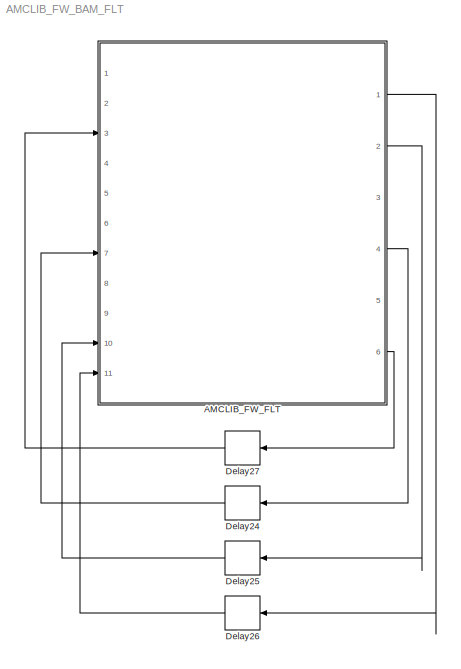
MODEL AMCLIB_FW_BAM_FLT
KIND model
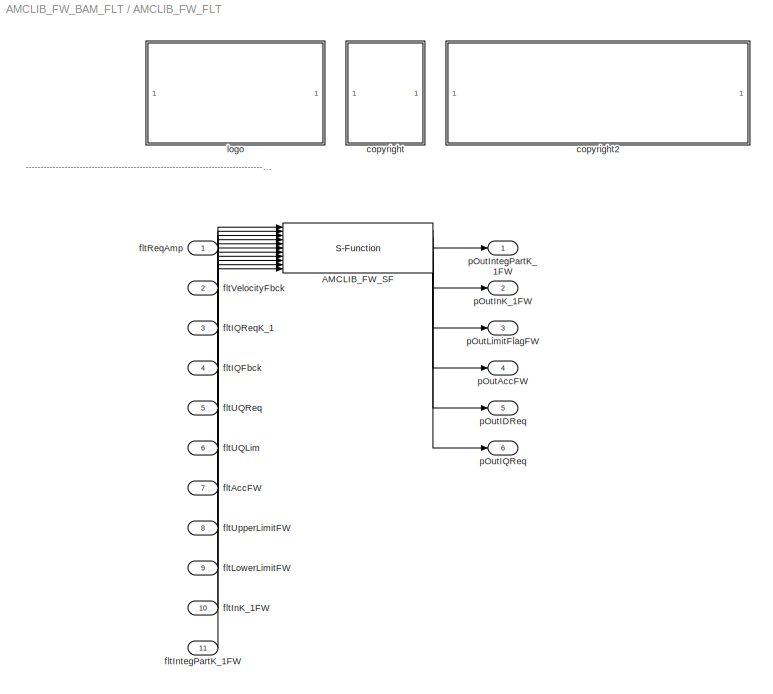
BLOCK [SubSystem] AMCLIB_FW_FLT
  Ports = [11, 6]
  RequestExecContextInheritance = off
  SID = 1
BLOCK [S-Function] AMCLIB_FW_FLT/AMCLIB_FW_SF
  EnableBusSupport = off
  FunctionName = AMCLIB_FW_SF_FLT
  Parameters = fltLambdaFW,fltPropGainFW,fltIntegGainFW,fltUmaxDivImax
  Ports = [11, 6]
  SID = 4
BLOCK [SubSystem] AMCLIB_FW_FLT/<copyright redacted>
  Ports = []
  RequestExecContextInheritance = off
  SID = 26
BLOCK [SubSystem] AMCLIB_FW_FLT/copyright2
  Ports = []
  RequestExecContextInheritance = off
  SID = 29
BLOCK [Inport] AMCLIB_FW_FLT/fltAccFW
  IconDisplay = Port number
  Port = 7
  SID = 11
BLOCK [Inport] AMCLIB_FW_FLT/fltIQFbck
  IconDisplay = Port number
  Port = 4
  SID = 8
BLOCK [Inport] AMCLIB_FW_FLT/fltIQReqK_1
  IconDisplay = Port number
  Port = 3
  SID = 7
BLOCK [Inport] AMCLIB_FW_FLT/fltInK_1FW
  IconDisplay = Port number
  Port = 10
  SID = 14
BLOCK [Inport] AMCLIB_FW_FLT/fltIntegPartK_1FW
  IconDisplay = Port number
  Port = 11
  SID = 15
BLOCK [Inport] AMCLIB_FW_FLT/fltLowerLimitFW
  IconDisplay = Port number
  Port = 9
  SID = 13
BLOCK [Inport] AMCLIB_FW_FLT/fltReqAmp
  IconDisplay = Port number
  SID = 5
BLOCK [Inport] AMCLIB_FW_FLT/fltUQLim
  IconDisplay = Port number
  Port = 6
  SID = 10
BLOCK [Inport] AMCLIB_FW_FLT/fltUQReq
  IconDisplay = Port number
  Port = 5
  SID = 9
BLOCK [Inport] AMCLIB_FW_FLT/fltUpperLimitFW
  IconDisplay = Port number
  Port = 8
  SID = 12
BLOCK [Inport] AMCLIB_FW_FLT/fltVelocityFbck
  IconDisplay = Port number
  Port = 2
  SID = 6
BLOCK [SubSystem] AMCLIB_FW_FLT/logo
  Ports = []
  RequestExecContextInheritance = off
  SID = 22
BLOCK [Outport] AMCLIB_FW_FLT/pOutAccFW
  IconDisplay = Port number
  Port = 4
  SID = 19
BLOCK [Outport] AMCLIB_FW_FLT/pOutIDReq
  IconDisplay = Port number
  Port = 5
  SID = 20
BLOCK [Outport] AMCLIB_FW_FLT/pOutIQReq
  IconDisplay = Port number
  Port = 6
  SID = 21
BLOCK [Outport] AMCLIB_FW_FLT/pOutInK_1FW
  IconDisplay = Port number
  Port = 2
  SID = 17
BLOCK [Outport] AMCLIB_FW_FLT/pOutIntegPartK_1FW
  IconDisplay = Port number
  SID = 16
BLOCK [Outport] AMCLIB_FW_FLT/pOutLimitFlagFW
  IconDisplay = Port number
  Port = 3
  SID = 18
BLOCK [Delay] Delay24
  DelayLength = 1
  InitialCondition = 0
  InputPortMap = u0
  Ports = [1, 1]
  SID = 32
BLOCK [Delay] Delay25
  DelayLength = 1
  InitialCondition = 0
  InputPortMap = u0
  Ports = [1, 1]
  SID = 33
BLOCK [Delay] Delay26
  DelayLength = 1
  InitialCondition = 0
  InputPortMap = u0
  Ports = [1, 1]
  SID = 34
BLOCK [Delay] Delay27
  DelayLength = 1
  InitialCondition = 0
  InputPortMap = u0
  Ports = [1, 1]
  SID = 35
ANNOTATION AMCLIB_FW_FLT: ---------------------------------------------------------------------------------------------------------------------------------------------------------------------------------------------------
LINE AMCLIB_FW_FLT/AMCLIB_FW_SF:1 -> AMCLIB_FW_FLT/pOutIntegPartK_1FW:1
LINE AMCLIB_FW_FLT/AMCLIB_FW_SF:2 -> AMCLIB_FW_FLT/pOutInK_1FW:1
LINE AMCLIB_FW_FLT/AMCLIB_FW_SF:3 -> AMCLIB_FW_FLT/pOutLimitFlagFW:1
LINE AMCLIB_FW_FLT/AMCLIB_FW_SF:4 -> AMCLIB_FW_FLT/pOutAccFW:1
LINE AMCLIB_FW_FLT/AMCLIB_FW_SF:5 -> AMCLIB_FW_FLT/pOutIDReq:1
LINE AMCLIB_FW_FLT/AMCLIB_FW_SF:6 -> AMCLIB_FW_FLT/pOutIQReq:1
LINE AMCLIB_FW_FLT/fltAccFW:1 -> AMCLIB_FW_FLT/AMCLIB_FW_SF:7
LINE AMCLIB_FW_FLT/fltIQFbck:1 -> AMCLIB_FW_FLT/AMCLIB_FW_SF:4
LINE AMCLIB_FW_FLT/fltIQReqK_1:1 -> AMCLIB_FW_FLT/AMCLIB_FW_SF:3
LINE AMCLIB_FW_FLT/fltInK_1FW:1 -> AMCLIB_FW_FLT/AMCLIB_FW_SF:10
LINE AMCLIB_FW_FLT/fltIntegPartK_1FW:1 -> AMCLIB_FW_FLT/AMCLIB_FW_SF:11
LINE AMCLIB_FW_FLT/fltLowerLimitFW:1 -> AMCLIB_FW_FLT/AMCLIB_FW_SF:9
LINE AMCLIB_FW_FLT/fltReqAmp:1 -> AMCLIB_FW_FLT/AMCLIB_FW_SF:1
LINE AMCLIB_FW_FLT/fltUQLim:1 -> AMCLIB_FW_FLT/AMCLIB_FW_SF:6
LINE AMCLIB_FW_FLT/fltUQReq:1 -> AMCLIB_FW_FLT/AMCLIB_FW_SF:5
LINE AMCLIB_FW_FLT/fltUpperLimitFW:1 -> AMCLIB_FW_FLT/AMCLIB_FW_SF:8
LINE AMCLIB_FW_FLT/fltVelocityFbck:1 -> AMCLIB_FW_FLT/AMCLIB_FW_SF:2
LINE AMCLIB_FW_FLT:1 -> Delay26:1
LINE AMCLIB_FW_FLT:2 -> Delay25:1
LINE AMCLIB_FW_FLT:4 -> Delay24:1
LINE AMCLIB_FW_FLT:6 -> Delay27:1
LINE Delay24:1 -> AMCLIB_FW_FLT:7
LINE Delay25:1 -> AMCLIB_FW_FLT:10
LINE Delay26:1 -> AMCLIB_FW_FLT:11
LINE Delay27:1 -> AMCLIB_FW_FLT:3
